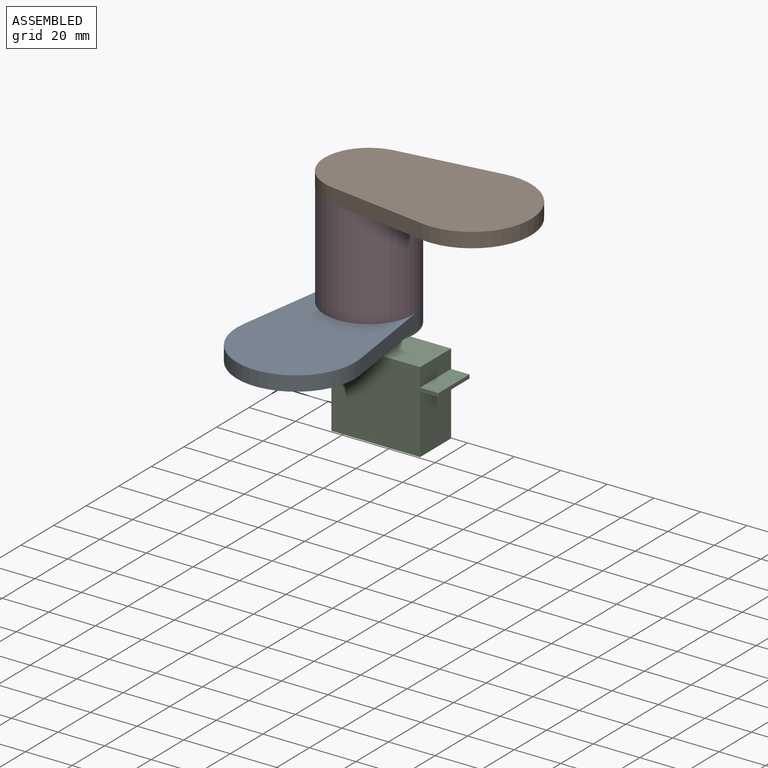
[diagram: assembled view]
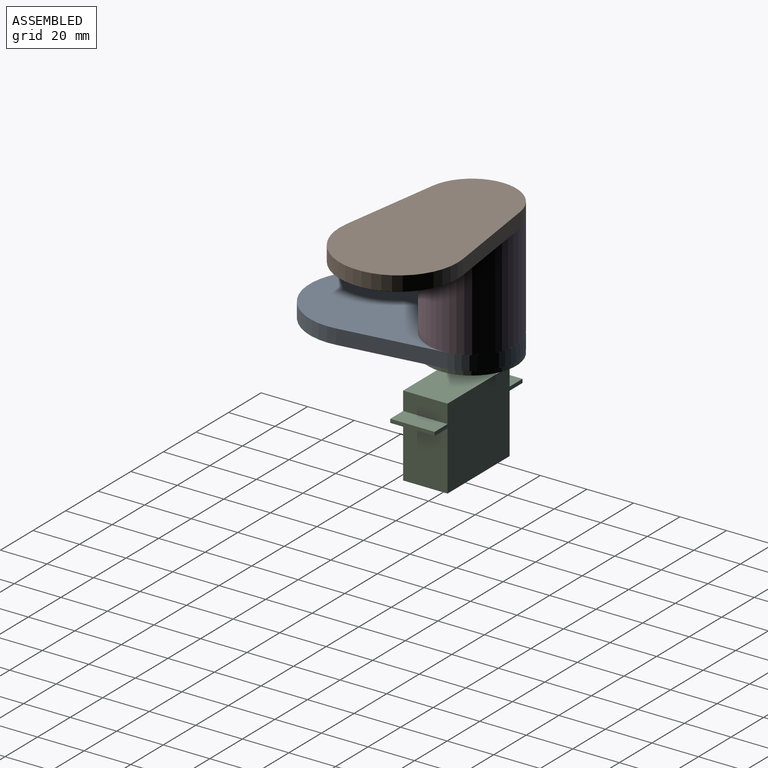
[diagram: assembled view, second angle]
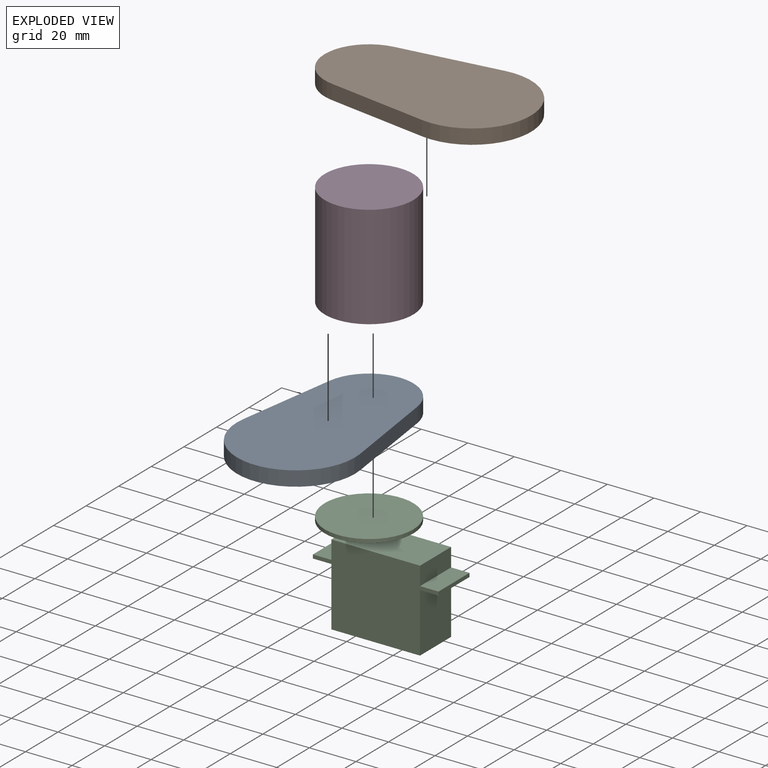
[diagram: exploded view]
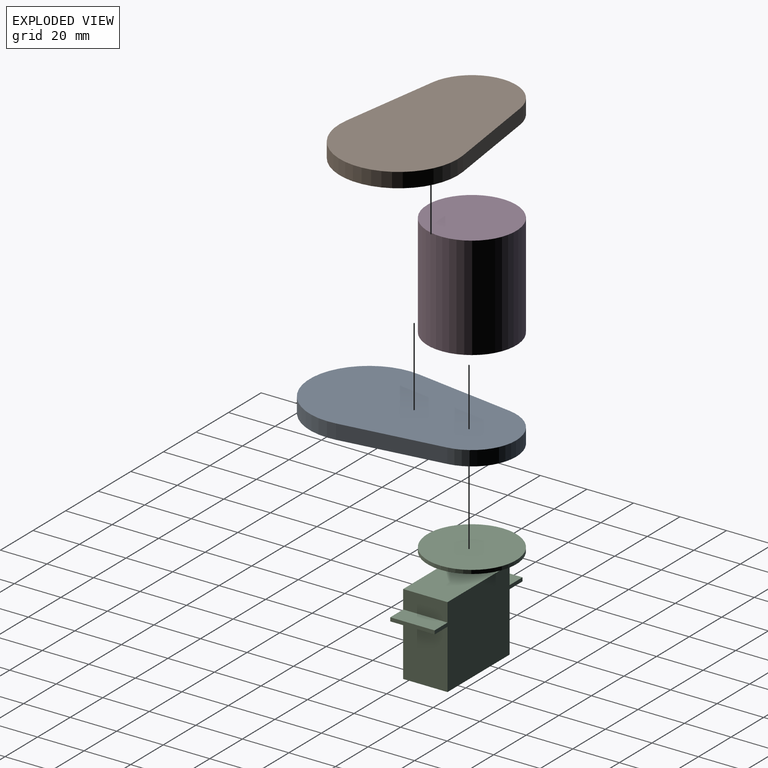
[diagram: exploded view, second angle]
ASSEMBLY  parts=4 mates=3
PART A: 6 faces, bbox 50.8x88.9x6.4 mm
  f0: plane 43.54x6.35mm, normal (0.99,-0.14,0), area 279.4mm2, adj f1,f3,f4,f5
  f1: cylinder r=25.4mm len=50.8mm, axis (0,0,-1), area 552.9mm2, adj f0,f2,f4,f5
  f2: plane 43.54x6.35mm, normal (-0.99,-0.14,0), area 279.4mm2, adj f1,f3,f4,f5
  f3: cylinder r=19.05mm len=37.71mm, axis (0,0,-1), area 345.3mm2, adj f0,f2,f4,f5
  f4: plane 88.9x50.8mm, normal (0,0,1), area 3579.5mm2, adj f0,f1,f2,f3
  f5: plane 88.9x50.8mm, normal (0,0,-1), area 3579.5mm2, adj f0,f1,f2,f3
PART B: same geometry as A
PART C: 18 faces, bbox 55.6x38.1x42.9 mm
  f0: plane 19.05x1.59mm, normal (-1,0,0), area 30.2mm2, adj f1,f5,f6,f9
  f1: plane 53.98x34.93mm, normal (0,-1,0), area 1355.8mm2, adj f0,f2,f3,f4,f6,f7,f8,f9
  f2: plane 19.05x1.59mm, normal (1,0,0), area 30.2mm2, adj f1,f5,f10,f12
  f3: plane 38.1x19.05mm, normal (0,0,-1), area 725.8mm2, adj f1,f5,f8,f11
  f4: plane 38.1x19.05mm, normal (0,0,1), area 717.9mm2, adj f1,f5,f7,f13,f14
  f5: plane 53.98x34.93mm, normal (0,1,0), area 1355.8mm2, adj f0,f2,f3,f4,f6,f7,f8,f9
  f6: plane 19.05x7.94mm, normal (0,0,1), area 151.2mm2, adj f0,f1,f5,f7
  f7: plane 19.05x7.94mm, normal (-1,0,0), area 151.2mm2, adj f1,f4,f5,f6
  f8: plane 25.4x19.05mm, normal (-1,0,0), area 483.9mm2, adj f1,f3,f5,f9
  f9: plane 19.05x7.94mm, normal (0,0,-1), area 151.2mm2, adj f0,f1,f5,f8
  f10: plane 19.05x7.94mm, normal (0,0,-1), area 151.2mm2, adj f1,f2,f5,f11
  f11: plane 25.4x19.05mm, normal (1,0,0), area 483.9mm2, adj f1,f3,f5,f10
  f12: plane 19.05x7.94mm, normal (0,0,1), area 151.2mm2, adj f1,f2,f5,f13
  f13: plane 19.05x7.94mm, normal (1,0,0), area 151.2mm2, adj f1,f4,f5,f12
  f14: cylinder r=1.59mm len=6.35mm, axis (0,0,-1), area 63.3mm2, adj f4,f17
  f15: cylinder r=19.05mm len=38.1mm, axis (0,0,-1), area 190mm2, adj f16,f17
  f16: plane 38.1x38.1mm, normal (0,0,1), area 1140.1mm2, adj f15
  f17: plane 38.1x38.1mm, normal (0,0,-1), area 1132.2mm2, adj f14,f15
PART D: 3 faces, bbox 38.1x38.1x44.5 mm
  f0: cylinder r=19.05mm len=44.45mm, axis (0,0,-1), area 5320.4mm2, adj f1,f2
  f1: plane 38.1x38.1mm, normal (0,0,1), area 1140.1mm2, adj f0
  f2: plane 38.1x38.1mm, normal (0,0,-1), area 1140.1mm2, adj f0
PLACE A rot(axis=(0,0,1),179.6deg) t=(-57.71,11.29,8.18)mm
PLACE B rot(axis=(0,0,-1),90.4deg) t=(-38.54,30.22,58.98)mm
PLACE C t=(-75.05,39.86,-9.28)mm fixed
PLACE D rot(axis=(0,0,-1),90.4deg) t=(-57.59,30.34,14.53)mm
MATE planar D.f0 <-> B.f3  axis (0,0,1) through (-57.59,30.34,58.98)mm
MATE planar D.f0 <-> A.f3  axis (0,0,-1) through (-57.59,30.34,14.53)mm
MATE planar A.f3 <-> C.f14  axis (0,0,-1) through (-57.59,30.34,8.18)mm
